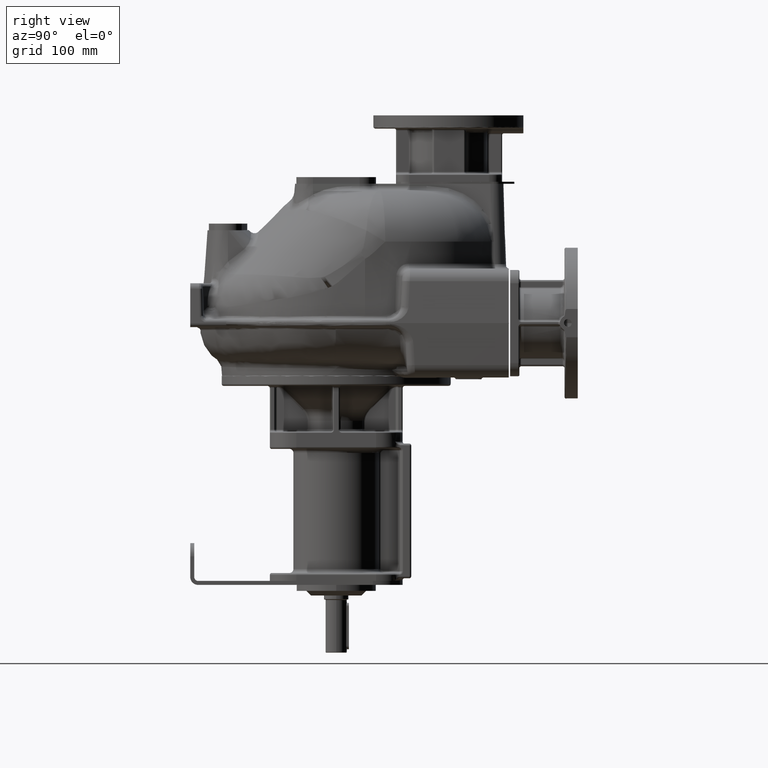
[diagram: clean part render]
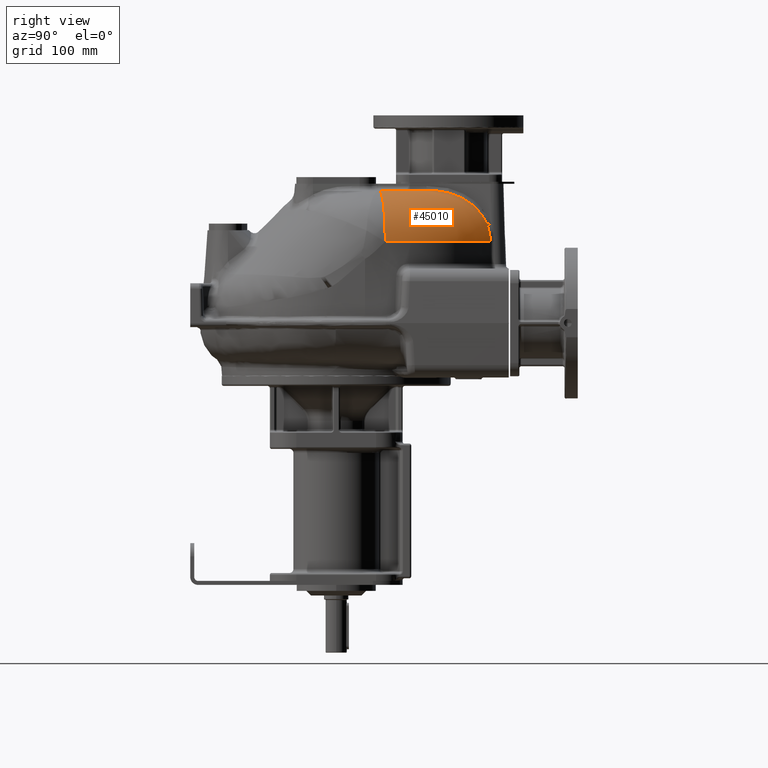
[diagram: same view with one face highlighted and labeled with its STEP entity id]
A machine part, right view. The second image highlights one B-rep face of the part: STEP entity #45010.
In plain terms, the highlighted toroidal blend (fillet) surface has major radius 122.893 mm and minor (blend) radius 80 mm.
Its self-contained STEP definition (entity closure, byte-faithful):
#6764=CARTESIAN_POINT('',(3.823675415175E1,2.718678243979E2,8.779195973637E1));
#6765=DIRECTION('',(0.E0,0.E0,1.E0));
#6766=DIRECTION('',(9.940795099670E-1,1.086550866908E-1,0.E0));
#6767=AXIS2_PLACEMENT_3D('',#6764,#6765,#6766);
#11875=CARTESIAN_POINT('',(1.277473705156E2,3.560730456565E2,1.649999998721E2));
#11876=CARTESIAN_POINT('',(1.275055042629E2,3.614996143454E2,1.650000031122E2));
#11877=CARTESIAN_POINT('',(1.270854864306E2,3.723051380271E2,1.645186476815E2));
#11878=CARTESIAN_POINT('',(1.267118284729E2,3.879836298230E2,1.619868093679E2));
#11879=CARTESIAN_POINT('',(1.266348943847E2,4.031287940310E2,1.571817430585E2));
#11880=CARTESIAN_POINT('',(1.268349576528E2,4.157228405415E2,1.508165030091E2));
#11881=CARTESIAN_POINT('',(1.272491766650E2,4.265149146274E2,1.430243512157E2));
#11882=CARTESIAN_POINT('',(1.278446983243E2,4.354343182137E2,1.340195465421E2));
#11883=CARTESIAN_POINT('',(1.285903470734E2,4.425106178886E2,1.239993855478E2));
#11884=CARTESIAN_POINT('',(1.291712132932E2,4.459721094763E2,1.167689752453E2));
#11885=CARTESIAN_POINT('',(1.294776202630E2,4.473772515886E2,1.130635029620E2));
#11887=CARTESIAN_POINT('',(1.294776202630E2,4.473772515886E2,1.130635029620E2));
#11888=CARTESIAN_POINT('',(1.297266447470E2,4.485193179755E2,1.100518120276E2));
#11889=CARTESIAN_POINT('',(1.300947452130E2,4.503600973744E2,1.041139789989E2));
#11890=CARTESIAN_POINT('',(1.306192022755E2,4.518387099811E2,9.584049694398E1));
#11891=CARTESIAN_POINT('',(1.310813281395E2,4.521132245630E2,9.042565823540E1));
#11892=CARTESIAN_POINT('',(1.313379375946E2,4.520841756292E2,8.779195972466E1));
#11904=CARTESIAN_POINT('',(1.604020882142E2,2.852207592561E2,8.5E1));
#11905=DIRECTION('',(1.086550379737E-1,-9.940795152919E-1,0.E0));
#11906=DIRECTION('',(9.934739489104E-1,1.085888482603E-1,3.489949670040E-2));
#11907=AXIS2_PLACEMENT_3D('',#11904,#11905,#11906);
#12903=CARTESIAN_POINT('',(3.823675415175E1,2.718678243979E2,1.65E2));
#12904=DIRECTION('',(0.E0,0.E0,1.E0));
#12905=DIRECTION('',(9.940795153530E-1,1.086550374149E-1,0.E0));
#12906=AXIS2_PLACEMENT_3D('',#12903,#12904,#12905);
#17376=CARTESIAN_POINT('',(1.604020882217E2,2.852207591875E2,1.65E2));
#17377=CARTESIAN_POINT('',(1.277473704510E2,3.560730456472E2,1.65E2));
#17378=VERTEX_POINT('',#17376);
#17379=VERTEX_POINT('',#17377);
#17382=CARTESIAN_POINT('',(2.398800030517E2,2.939078769995E2,8.779195973637E1));
#17383=CARTESIAN_POINT('',(1.313379377485E2,4.520841759271E2,8.779195973637E1));
#17384=VERTEX_POINT('',#17382);
#17385=VERTEX_POINT('',#17383);
#17556=VERTEX_POINT('',#11885);
#44995=CARTESIAN_POINT('',(3.823675415175E1,2.718678243979E2,8.5E1));
#44996=DIRECTION('',(0.E0,0.E0,1.E0));
#44997=DIRECTION('',(-9.999484742267E-1,-1.015129999537E-2,0.E0));
#44998=AXIS2_PLACEMENT_3D('',#44995,#44996,#44997);
#44999=TOROIDAL_SURFACE('',#44998,1.228929197143E2,8.E1);
#45000=ORIENTED_EDGE('',*,*,#44985,.T.);
#45002=ORIENTED_EDGE('',*,*,#45001,.T.);
#45003=ORIENTED_EDGE('',*,*,#35873,.F.);
#45005=ORIENTED_EDGE('',*,*,#45004,.T.);
#45007=ORIENTED_EDGE('',*,*,#45006,.T.);
#45008=EDGE_LOOP('',(#45000,#45002,#45003,#45005,#45007));
#45009=FACE_OUTER_BOUND('',#45008,.F.);
#45010=ADVANCED_FACE('',(#45009),#44999,.T.);
#6768=CIRCLE('',#6767,2.028441858807E2);
#11886=B_SPLINE_CURVE_WITH_KNOTS('',3,(#11875,#11876,#11877,#11878,#11879,
#11880,#11881,#11882,#11883,#11884,#11885),.UNSPECIFIED.,.F.,.F.,(4,1,1,1,1,1,1,
1,4),(0.E0,1.25E-1,2.5E-1,3.75E-1,5.E-1,6.25E-1,7.5E-1,8.75E-1,1.E0),
.UNSPECIFIED.);
#11893=B_SPLINE_CURVE_WITH_KNOTS('',3,(#11887,#11888,#11889,#11890,#11891,
#11892),.UNSPECIFIED.,.F.,.F.,(4,1,1,4),(0.E0,3.333333333333E-1,
6.666666666667E-1,1.E0),.UNSPECIFIED.);
#11908=CIRCLE('',#11907,8.E1);
#12907=CIRCLE('',#12906,1.228929197143E2);
#35873=EDGE_CURVE('',#17384,#17385,#6768,.T.);
#44985=EDGE_CURVE('',#17379,#17556,#11886,.T.);
#45001=EDGE_CURVE('',#17556,#17385,#11893,.T.);
#45004=EDGE_CURVE('',#17384,#17378,#11908,.T.);
#45006=EDGE_CURVE('',#17378,#17379,#12907,.T.);